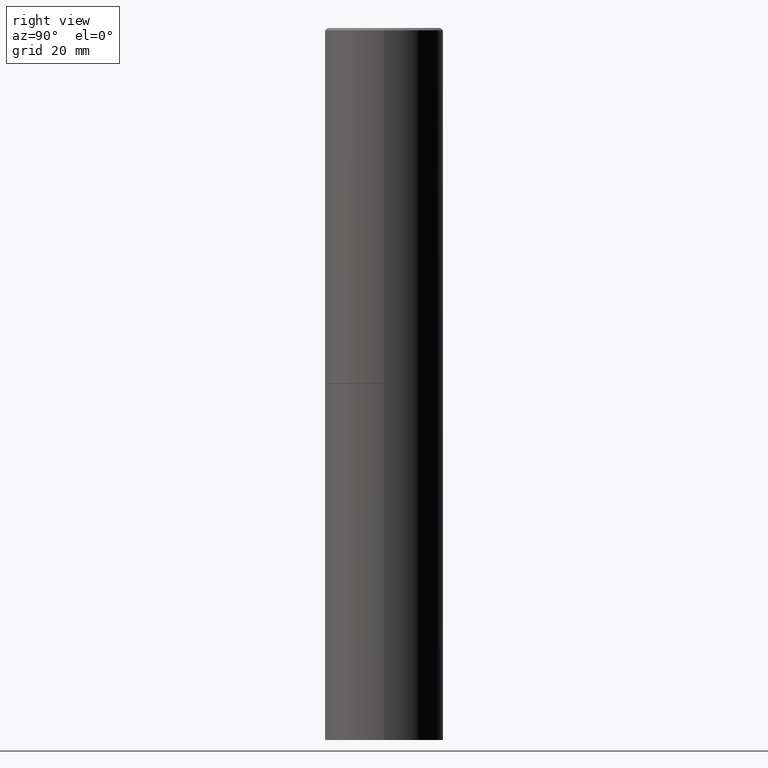
[diagram: clean part render]
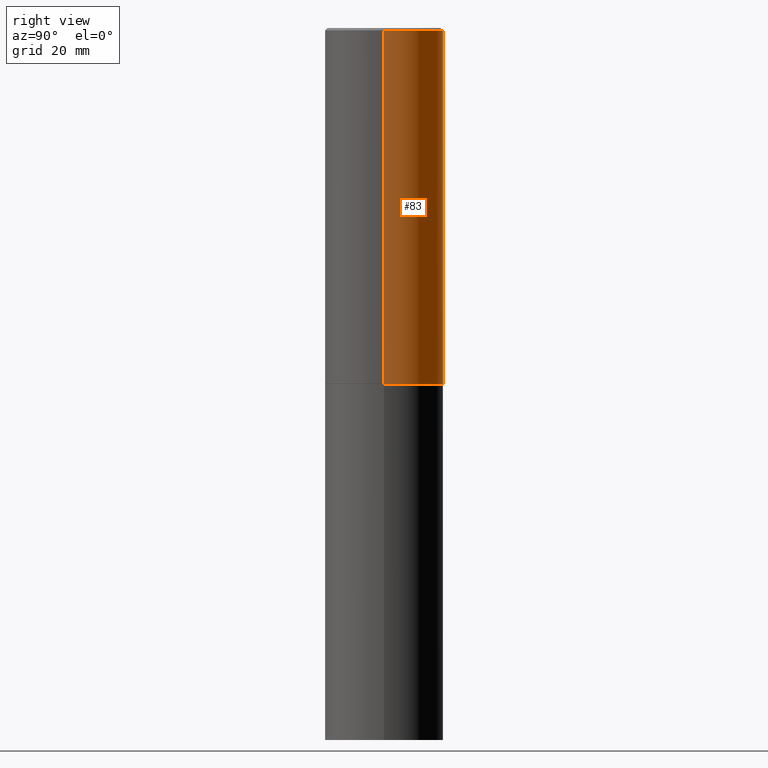
[diagram: same view with one face highlighted and labeled with its STEP entity id]
A machine part, right view. The second image highlights one B-rep face of the part: STEP entity #83.
In plain terms, the highlighted cylindrical surface (partial cylindrical patch) has radius 12.5006 mm, axis along (-0, 0, 1).
Its self-contained STEP definition (entity closure, byte-faithful):
#3 = ORIENTED_EDGE ( 'NONE', *, *, #34, .F. ) ;
#7 = VERTEX_POINT ( 'NONE', #158 ) ;
#34 = EDGE_CURVE ( 'NONE', #7, #273, #174, .T. ) ;
#35 = AXIS2_PLACEMENT_3D ( 'NONE', #225, #199, #95 ) ;
#40 = VECTOR ( 'NONE', #205, 39.37007874015748143 ) ;
#57 = CARTESIAN_POINT ( 'NONE',  ( -0.4921499999999996988, 3.366835455046430506E-15, -0.02000000000000010797 ) ) ;
#65 = DIRECTION ( 'NONE',  ( -2.445468806185136597E-29, 3.491481338843145583E-15, 1.000000000000000000 ) ) ;
#67 = DIRECTION ( 'NONE',  ( 1.000000000000000000, -6.982962677686265922E-15, 0.000000000000000000 ) ) ;
#83 = ADVANCED_FACE ( 'NONE', ( #349 ), #97, .T. ) ;
#89 = ORIENTED_EDGE ( 'NONE', *, *, #325, .T. ) ;
#94 = EDGE_CURVE ( 'NONE', #299, #273, #211, .T. ) ;
#95 = DIRECTION ( 'NONE',  ( 1.000000000000000000, -6.982962677686265922E-15, 0.000000000000000000 ) ) ;
#97 = CYLINDRICAL_SURFACE ( 'NONE', #323, 0.4921499999999998098 ) ;
#117 = ORIENTED_EDGE ( 'NONE', *, *, #151, .F. ) ;
#135 = CARTESIAN_POINT ( 'NONE',  ( 0.4921499999999998098, -3.436665081823294593E-15, 2.399810400207968762E-29 ) ) ;
#146 = ORIENTED_EDGE ( 'NONE', *, *, #94, .T. ) ;
#151 = EDGE_CURVE ( 'NONE', #152, #7, #296, .T. ) ;
#152 = VERTEX_POINT ( 'NONE', #167 ) ;
#153 = VECTOR ( 'NONE', #352, 39.37007874015748143 ) ;
#158 = CARTESIAN_POINT ( 'NONE',  ( 0.4921499999999996988, -3.446223716380120377E-15, -0.02000000000000010797 ) ) ;
#161 = AXIS2_PLACEMENT_3D ( 'NONE', #350, #65, #67 ) ;
#167 = CARTESIAN_POINT ( 'NONE',  ( 0.4921499999999999764, -1.374247054968660936E-14, -2.951700000000000212 ) ) ;
#174 = CIRCLE ( 'NONE', #161, 0.4921499999999996988 ) ;
#178 = CARTESIAN_POINT ( 'NONE',  ( -0.4921499999999999764, -1.690881473276754954E-15, -2.951700000000000212 ) ) ;
#183 = DIRECTION ( 'NONE',  ( -2.445468806185136597E-29, 3.491481338843145583E-15, 1.000000000000000000 ) ) ;
#199 = DIRECTION ( 'NONE',  ( -2.445468806185136597E-29, 3.491481338843145583E-15, 1.000000000000000000 ) ) ;
#205 = DIRECTION ( 'NONE',  ( -2.445468806185136877E-29, 3.491481338843145188E-15, 1.000000000000000000 ) ) ;
#211 = LINE ( 'NONE', #360, #153 ) ;
#225 = CARTESIAN_POINT ( 'NONE',  ( 7.218290275216666916E-29, -1.030580546786331359E-14, -2.951700000000000212 ) ) ;
#273 = VERTEX_POINT ( 'NONE', #57 ) ;
#296 = LINE ( 'NONE', #135, #40 ) ;
#299 = VERTEX_POINT ( 'NONE', #178 ) ;
#309 = EDGE_LOOP ( 'NONE', ( #89, #146, #3, #117 ) ) ;
#316 = CARTESIAN_POINT ( 'NONE',  ( 0.000000000000000000, 0.000000000000000000, 0.000000000000000000 ) ) ;
#318 = DIRECTION ( 'NONE',  ( 1.000000000000000000, -6.982962677686265922E-15, 4.876176775795935793E-29 ) ) ;
#323 = AXIS2_PLACEMENT_3D ( 'NONE', #316, #183, #318 ) ;
#325 = EDGE_CURVE ( 'NONE', #152, #299, #351, .T. ) ;
#349 = FACE_OUTER_BOUND ( 'NONE', #309, .T. ) ;
#350 = CARTESIAN_POINT ( 'NONE',  ( 4.890937612370299433E-31, -6.982962677686328587E-17, -0.02000000000000010797 ) ) ;
#351 = CIRCLE ( 'NONE', #35, 0.4921499999999999764 ) ;
#352 = DIRECTION ( 'NONE',  ( -2.445468806185136877E-29, 3.491481338843145188E-15, 1.000000000000000000 ) ) ;
#360 = CARTESIAN_POINT ( 'NONE',  ( -0.4921499999999998098, 3.496936074043331714E-15, -2.420853904668950949E-29 ) ) ;